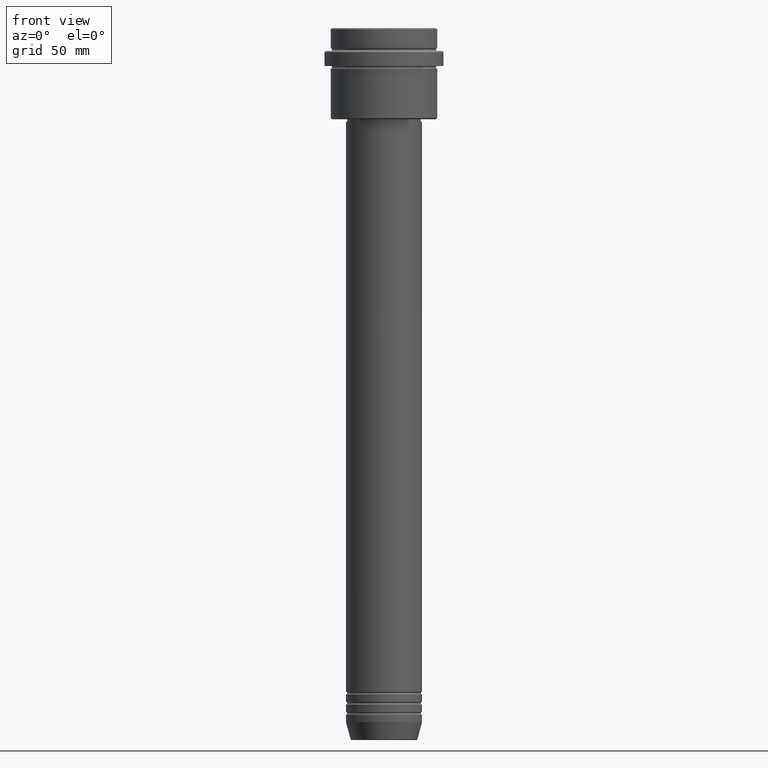
[diagram: clean part render]
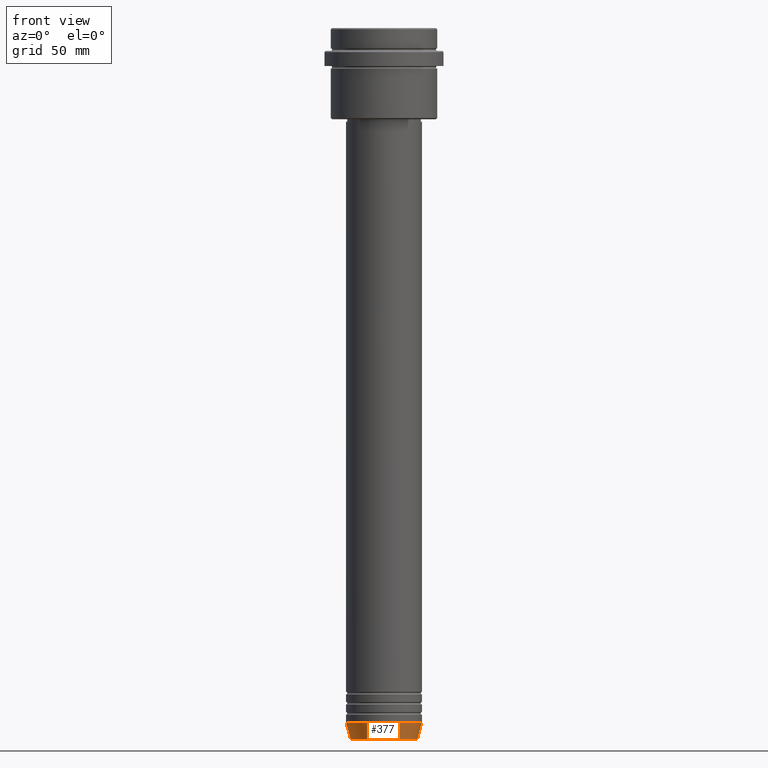
[diagram: same view with one face highlighted and labeled with its STEP entity id]
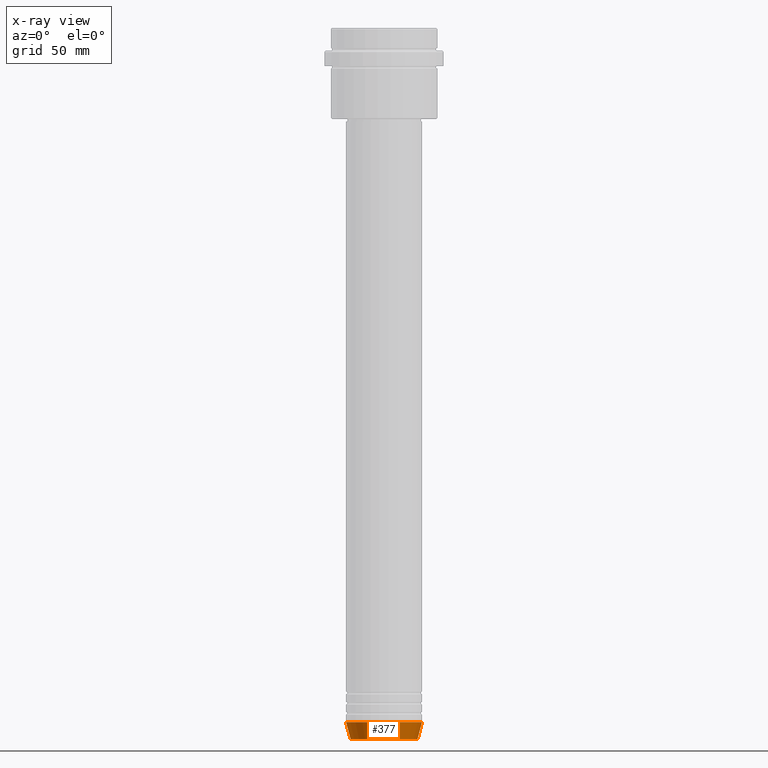
[diagram: x-ray of the same camera — body ghosted, the highlighted face saturated]
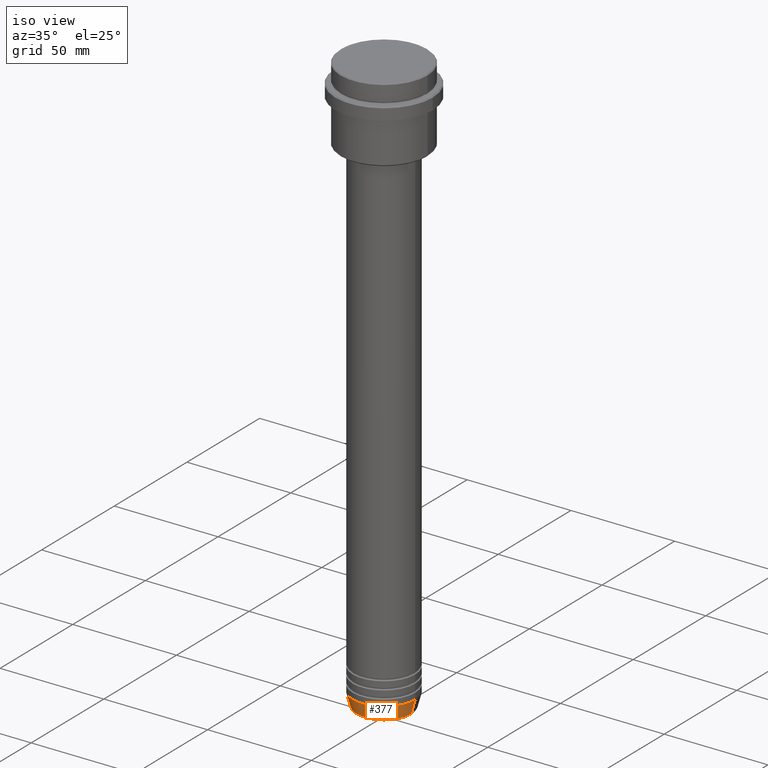
[diagram: same view with one face highlighted and labeled with its STEP entity id]
A machine part, front view. The second image highlights one B-rep face of the part: STEP entity #377.
The next image is the same camera in x-ray: the body ghosted, the highlighted face saturated — about 0% of this face is hidden behind the body in this view.
A second angle (iso view) of the same face is appended — the face is thin or edge-on in the first view.
In plain terms, the highlighted conical surface has half-angle 15 deg.
Its self-contained STEP definition (entity closure, byte-faithful):
#68 = CARTESIAN_POINT ( 'NONE',  ( 0.000000000000000000, 0.000000000000000000, -274.0000000000000000 ) ) ;
#102 = VECTOR ( 'NONE', #580, 1000.000000000000000 ) ;
#109 = DIRECTION ( 'NONE',  ( 1.000000000000000000, 0.000000000000000000, 0.000000000000000000 ) ) ;
#143 = CARTESIAN_POINT ( 'NONE',  ( 15.00000000000000000, 0.000000000000000000, -274.0000000000000000 ) ) ;
#185 = EDGE_CURVE ( 'NONE', #200, #1288, #866, .T. ) ;
#200 = VERTEX_POINT ( 'NONE', #288 ) ;
#227 = AXIS2_PLACEMENT_3D ( 'NONE', #444, #890, #109 ) ;
#236 = VERTEX_POINT ( 'NONE', #515 ) ;
#281 = ORIENTED_EDGE ( 'NONE', *, *, #185, .F. ) ;
#288 = CARTESIAN_POINT ( 'NONE',  ( -15.00000000000000000, 1.836970198721029589E-15, -274.0000000000000000 ) ) ;
#377 = ADVANCED_FACE ( 'NONE', ( #1055 ), #1324, .T. ) ;
#397 = ORIENTED_EDGE ( 'NONE', *, *, #1019, .T. ) ;
#444 = CARTESIAN_POINT ( 'NONE',  ( 0.000000000000000000, 0.000000000000000000, -280.6294095225513274 ) ) ;
#478 = DIRECTION ( 'NONE',  ( 1.000000000000000000, 0.000000000000000000, 0.000000000000000000 ) ) ;
#515 = CARTESIAN_POINT ( 'NONE',  ( 13.22365507213718772, 0.000000000000000000, -280.6294095225513274 ) ) ;
#544 = AXIS2_PLACEMENT_3D ( 'NONE', #1314, #975, #1408 ) ;
#580 = DIRECTION ( 'NONE',  ( 0.2588190451025213501, 0.000000000000000000, 0.9659258262890680902 ) ) ;
#598 = EDGE_LOOP ( 'NONE', ( #857, #1000, #397, #281 ) ) ;
#840 = VECTOR ( 'NONE', #1232, 1000.000000000000000 ) ;
#857 = ORIENTED_EDGE ( 'NONE', *, *, #864, .F. ) ;
#858 = CARTESIAN_POINT ( 'NONE',  ( -15.00000000000000000, 1.836970198721029589E-15, -274.0000000000000000 ) ) ;
#864 = EDGE_CURVE ( 'NONE', #1268, #200, #880, .T. ) ;
#866 = CIRCLE ( 'NONE', #544, 15.00000000000000000 ) ;
#880 = LINE ( 'NONE', #858, #840 ) ;
#890 = DIRECTION ( 'NONE',  ( -0.000000000000000000, -0.000000000000000000, 1.000000000000000000 ) ) ;
#975 = DIRECTION ( 'NONE',  ( -0.000000000000000000, -0.000000000000000000, 1.000000000000000000 ) ) ;
#992 = CARTESIAN_POINT ( 'NONE',  ( 15.00000000000000000, 0.000000000000000000, -274.0000000000000000 ) ) ;
#1000 = ORIENTED_EDGE ( 'NONE', *, *, #1295, .T. ) ;
#1019 = EDGE_CURVE ( 'NONE', #236, #1288, #1244, .T. ) ;
#1055 = FACE_OUTER_BOUND ( 'NONE', #598, .T. ) ;
#1083 = CIRCLE ( 'NONE', #227, 13.22365507213718772 ) ;
#1204 = AXIS2_PLACEMENT_3D ( 'NONE', #68, #1381, #478 ) ;
#1232 = DIRECTION ( 'NONE',  ( -0.2588190451025213501, 3.169619151431772337E-17, 0.9659258262890680902 ) ) ;
#1244 = LINE ( 'NONE', #143, #102 ) ;
#1268 = VERTEX_POINT ( 'NONE', #1315 ) ;
#1288 = VERTEX_POINT ( 'NONE', #992 ) ;
#1295 = EDGE_CURVE ( 'NONE', #1268, #236, #1083, .T. ) ;
#1314 = CARTESIAN_POINT ( 'NONE',  ( 0.000000000000000000, 0.000000000000000000, -274.0000000000000000 ) ) ;
#1315 = CARTESIAN_POINT ( 'NONE',  ( -13.22365507213718772, 1.728200442216588386E-15, -280.6294095225513274 ) ) ;
#1324 = CONICAL_SURFACE ( 'NONE', #1204, 15.00000000000000000, 0.2617993877991500740 ) ;
#1381 = DIRECTION ( 'NONE',  ( -0.000000000000000000, -0.000000000000000000, 1.000000000000000000 ) ) ;
#1408 = DIRECTION ( 'NONE',  ( 1.000000000000000000, 0.000000000000000000, 0.000000000000000000 ) ) ;